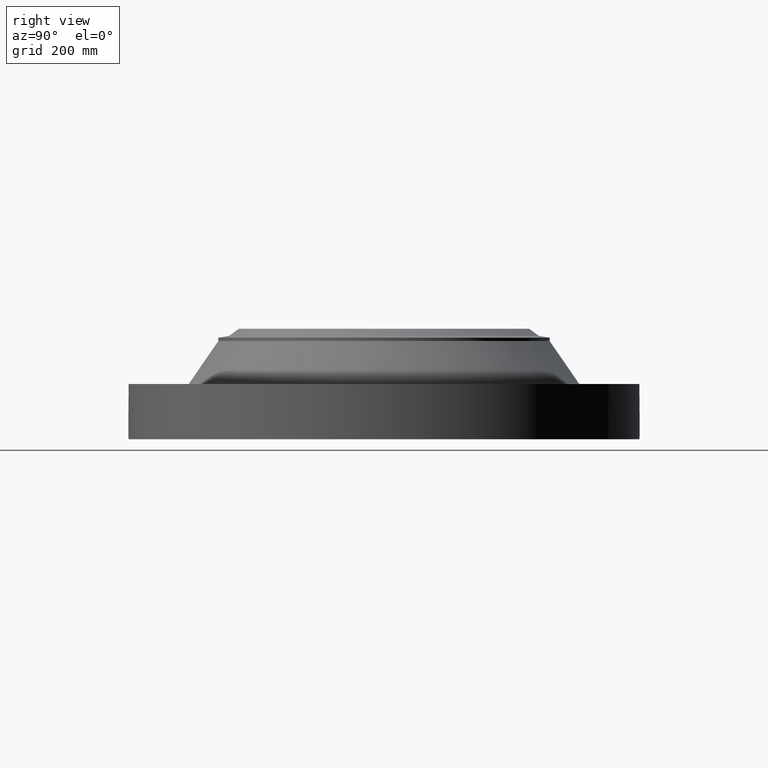
[diagram: clean part render]
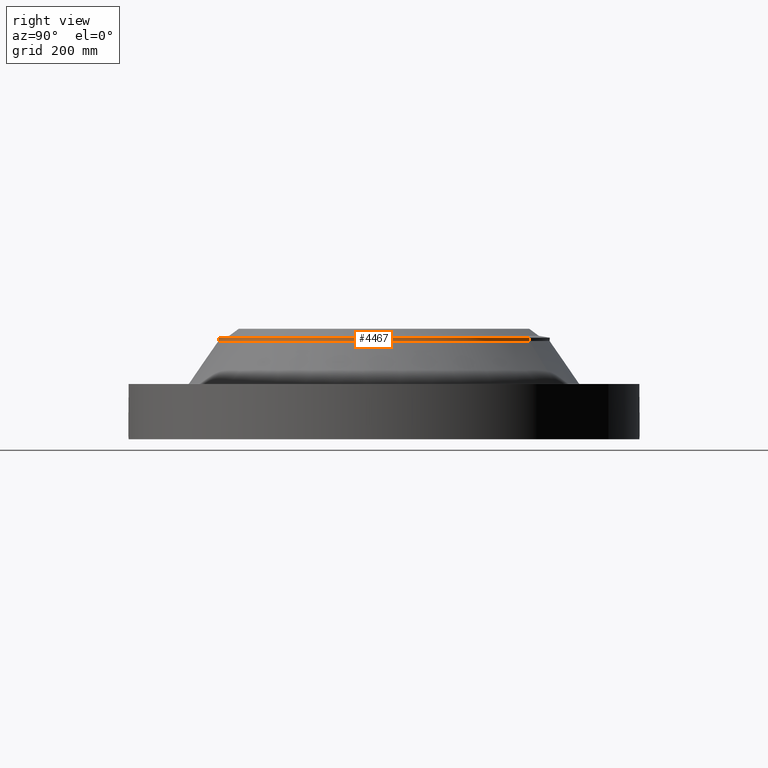
[diagram: same view with one face highlighted and labeled with its STEP entity id]
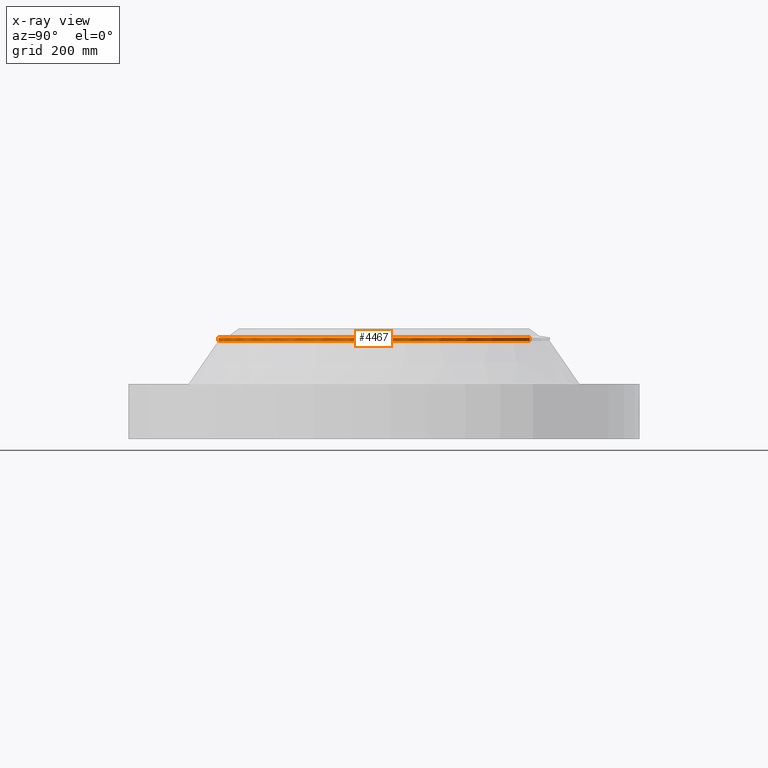
[diagram: x-ray of the same camera — body ghosted, the highlighted face saturated]
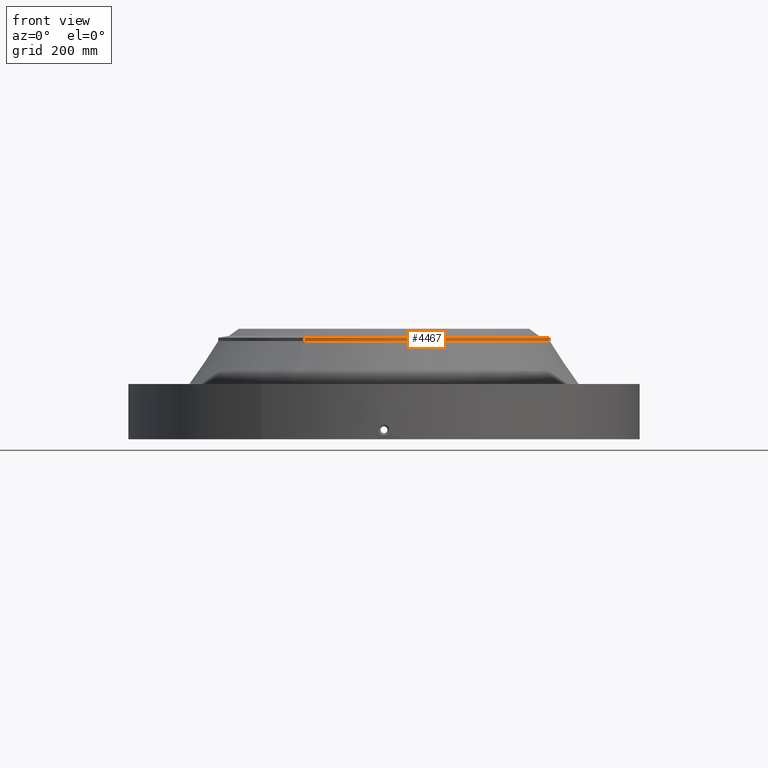
[diagram: same view with one face highlighted and labeled with its STEP entity id]
A machine part, right view. The second image highlights one B-rep face of the part: STEP entity #4467.
The next image is the same camera in x-ray: the body ghosted, the highlighted face saturated — about 0% of this face is hidden behind the body in this view.
A second angle (front view) of the same face is appended — the face is thin or edge-on in the first view.
In plain terms, the highlighted cylindrical surface (partial cylindrical patch) has radius 304.8 mm, axis along (0, 0, -1).
Its self-contained STEP definition (entity closure, byte-faithful):
#3632=AXIS2_PLACEMENT_3D('Circle Axis2P3D',#3630,#3631,$) ;
#4432=AXIS2_PLACEMENT_3D('Cylinder Axis2P3D',#4429,#4430,#4431) ;
#4450=AXIS2_PLACEMENT_3D('Circle Axis2P3D',#4448,#4449,$) ;
#4457=AXIS2_PLACEMENT_3D('Circle Axis2P3D',#4455,#4456,$) ;
#3627=CARTESIAN_POINT('Vertex',(5.75310646327,10.5309907427,7.36215574839)) ;
#3630=CARTESIAN_POINT('Axis2P3D Location',(0.,0.,7.36215574839)) ;
#3634=CARTESIAN_POINT('Vertex',(-5.75310646327,-10.5309907427,7.36215574839)) ;
#4429=CARTESIAN_POINT('Axis2P3D Location',(0.,0.,4.25000000002)) ;
#4434=CARTESIAN_POINT('Line Origine',(-5.75310646327,-10.5309907427,7.48026598461)) ;
#4438=CARTESIAN_POINT('Vertex',(-5.75310646327,-10.5309907427,7.59837622083)) ;
#4441=CARTESIAN_POINT('Line Origine',(5.75310646327,10.5309907427,7.48026598461)) ;
#4445=CARTESIAN_POINT('Vertex',(5.75310646327,10.5309907427,7.59837622083)) ;
#4448=CARTESIAN_POINT('Axis2P3D Location',(0.,0.,7.59837622083)) ;
#4452=CARTESIAN_POINT('Vertex',(5.75310646327,-10.5309907427,7.59837622083)) ;
#4455=CARTESIAN_POINT('Axis2P3D Location',(0.,0.,7.59837622083)) ;
#3631=DIRECTION('Axis2P3D Direction',(0.,0.,-0.0393700787402)) ;
#4430=DIRECTION('Axis2P3D Direction',(0.,0.,-0.0393700787402)) ;
#4431=DIRECTION('Axis2P3D XDirection',(-0.0188750212049,-0.0345504945626,0.)) ;
#4435=DIRECTION('Vector Direction',(0.,0.,-0.0393700787402)) ;
#4442=DIRECTION('Vector Direction',(0.,0.,-0.0393700787402)) ;
#4449=DIRECTION('Axis2P3D Direction',(0.,0.,-0.0393700787402)) ;
#4456=DIRECTION('Axis2P3D Direction',(0.,0.,-0.0393700787402)) ;
#4436=VECTOR('Line Direction',#4435,0.0393700787402) ;
#4443=VECTOR('Line Direction',#4442,0.0393700787402) ;
#4461=ORIENTED_EDGE('',*,*,#4440,.F.) ;
#4462=ORIENTED_EDGE('',*,*,#3636,.F.) ;
#4463=ORIENTED_EDGE('',*,*,#4447,.T.) ;
#4464=ORIENTED_EDGE('',*,*,#4454,.F.) ;
#4465=ORIENTED_EDGE('',*,*,#4459,.T.) ;
#4467=ADVANCED_FACE('PartBody',(#4466),#4433,.T.) ;
#3633=CIRCLE('generated circle',#3632,12.) ;
#4451=CIRCLE('generated circle',#4450,12.) ;
#4458=CIRCLE('generated circle',#4457,12.) ;
#4433=CYLINDRICAL_SURFACE('generated cylinder',#4432,12.) ;
#3636=EDGE_CURVE('',#3628,#3635,#3633,.T.) ;
#4440=EDGE_CURVE('',#3635,#4439,#4437,.F.) ;
#4447=EDGE_CURVE('',#3628,#4446,#4444,.F.) ;
#4454=EDGE_CURVE('',#4453,#4446,#4451,.F.) ;
#4459=EDGE_CURVE('',#4453,#4439,#4458,.T.) ;
#4460=EDGE_LOOP('',(#4461,#4462,#4463,#4464,#4465)) ;
#4466=FACE_OUTER_BOUND('',#4460,.T.) ;
#4437=LINE('Line',#4434,#4436) ;
#4444=LINE('Line',#4441,#4443) ;
#3628=VERTEX_POINT('',#3627) ;
#3635=VERTEX_POINT('',#3634) ;
#4439=VERTEX_POINT('',#4438) ;
#4446=VERTEX_POINT('',#4445) ;
#4453=VERTEX_POINT('',#4452) ;